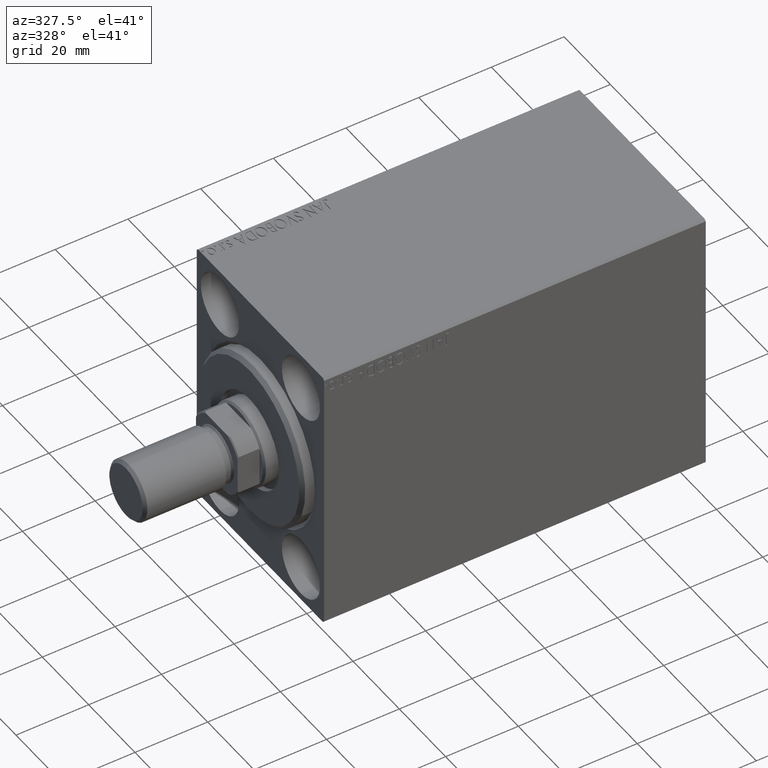
[diagram: clean part render]
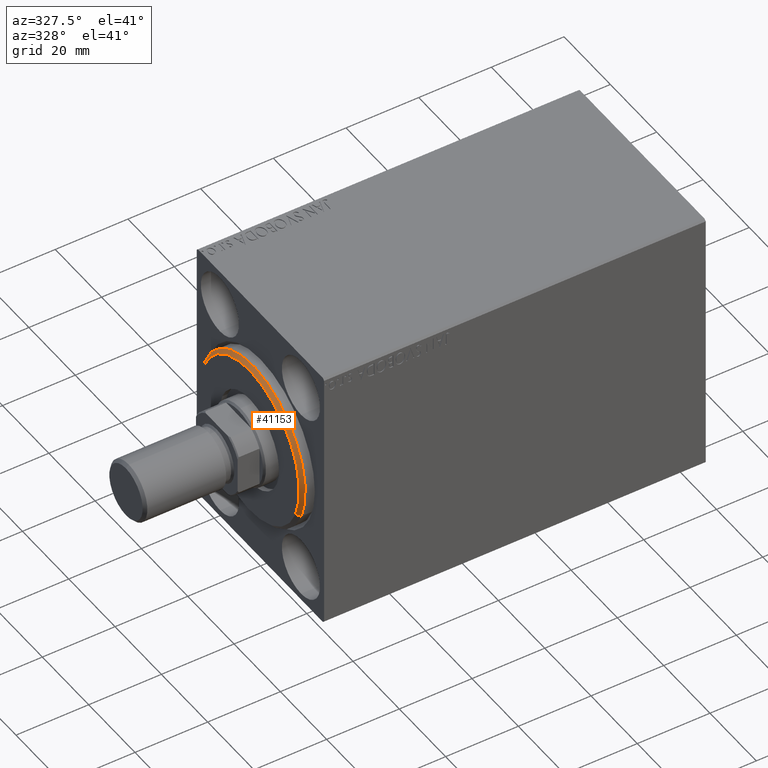
[diagram: same view with one face highlighted and labeled with its STEP entity id]
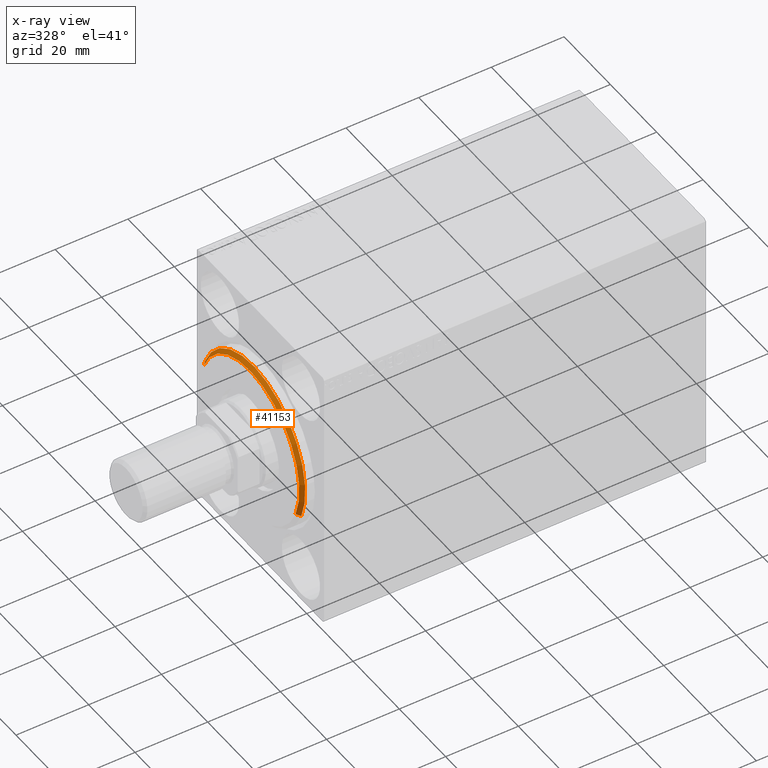
[diagram: x-ray of the same camera — body ghosted, the highlighted face saturated]
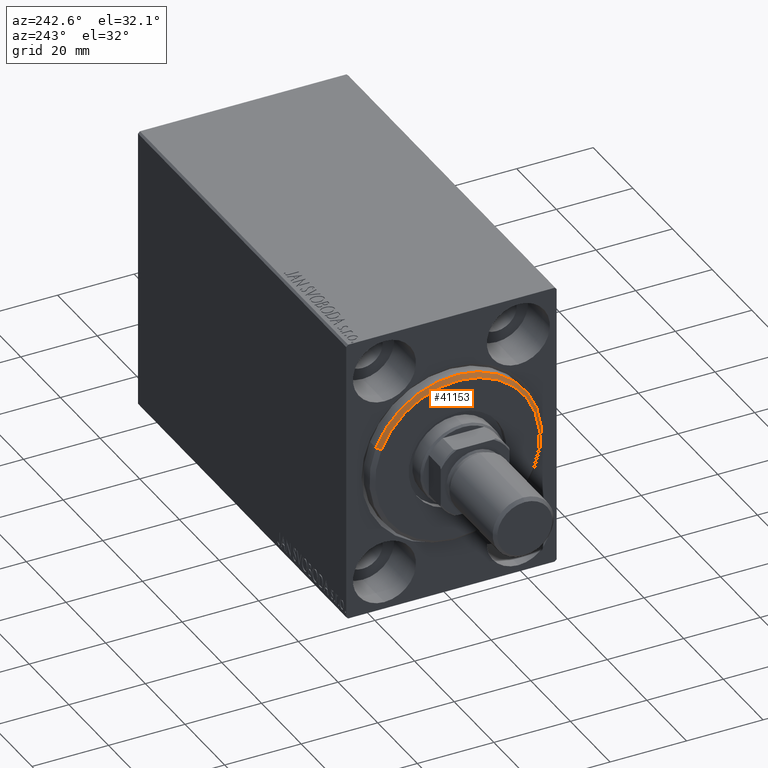
[diagram: same view with one face highlighted and labeled with its STEP entity id]
A machine part, auxiliary view. The second image highlights one B-rep face of the part: STEP entity #41153.
The next image is the same camera in x-ray: the body ghosted, the highlighted face saturated — about 0% of this face is hidden behind the body in this view.
A second angle (auxiliary view) of the same face is appended — the face is thin or edge-on in the first view.
In plain terms, the highlighted conical surface has half-angle 45 deg.
Its self-contained STEP definition (entity closure, byte-faithful):
#4809 = VECTOR ( 'NONE', #26186, 1000.000000000000000 ) ;
#6326 = DIRECTION ( 'NONE',  ( 1.000000000000000000, -0.000000000000000000, 0.000000000000000000 ) ) ;
#6547 = DIRECTION ( 'NONE',  ( 0.000000000000000000, 0.000000000000000000, 1.000000000000000000 ) ) ;
#8354 = DIRECTION ( 'NONE',  ( -0.7071067811865487940, 8.659560562354919300E-17, -0.7071067811865463515 ) ) ;
#8514 = CIRCLE ( 'NONE', #14283, 21.50000000000000355 ) ;
#9690 = DIRECTION ( 'NONE',  ( 0.000000000000000000, 0.000000000000000000, -1.000000000000000000 ) ) ;
#11770 = EDGE_CURVE ( 'NONE', #30543, #36107, #41754, .T. ) ;
#13742 = DIRECTION ( 'NONE',  ( -1.000000000000000000, 0.000000000000000000, 0.000000000000000000 ) ) ;
#14283 = AXIS2_PLACEMENT_3D ( 'NONE', #26320, #6326, #26096 ) ;
#15413 = ORIENTED_EDGE ( 'NONE', *, *, #40200, .F. ) ;
#16238 = DIRECTION ( 'NONE',  ( -1.000000000000000000, 0.000000000000000000, 0.000000000000000000 ) ) ;
#17303 = ORIENTED_EDGE ( 'NONE', *, *, #36462, .F. ) ;
#17531 = CARTESIAN_POINT ( 'NONE',  ( 3.000000000000000000, 2.694222958124177598E-15, -21.50000000000000355 ) ) ;
#19235 = VERTEX_POINT ( 'NONE', #17531 ) ;
#20972 = AXIS2_PLACEMENT_3D ( 'NONE', #26324, #13742, #9690 ) ;
#25428 = CARTESIAN_POINT ( 'NONE',  ( 3.000000000000000000, 2.632990618166810024E-15, -21.50000000000000355 ) ) ;
#26096 = DIRECTION ( 'NONE',  ( 0.000000000000000000, 0.000000000000000000, -1.000000000000000000 ) ) ;
#26186 = DIRECTION ( 'NONE',  ( -0.7071067811865487940, 0.000000000000000000, 0.7071067811865463515 ) ) ;
#26320 = CARTESIAN_POINT ( 'NONE',  ( 3.000000000000000000, 0.000000000000000000, 0.000000000000000000 ) ) ;
#26324 = CARTESIAN_POINT ( 'NONE',  ( 1.999999999999999112, 0.000000000000000000, 0.000000000000000000 ) ) ;
#26327 = FACE_OUTER_BOUND ( 'NONE', #40915, .T. ) ;
#27577 = CARTESIAN_POINT ( 'NONE',  ( 1.999999999999999112, 0.000000000000000000, 22.50000000000000355 ) ) ;
#27799 = VECTOR ( 'NONE', #8354, 1000.000000000000000 ) ;
#27925 = LINE ( 'NONE', #25428, #27799 ) ;
#28784 = CARTESIAN_POINT ( 'NONE',  ( 1.999999999999999112, 2.755455298081545172E-15, -22.50000000000000355 ) ) ;
#29056 = ORIENTED_EDGE ( 'NONE', *, *, #11770, .F. ) ;
#29336 = CARTESIAN_POINT ( 'NONE',  ( 3.000000000000000000, 0.000000000000000000, 21.50000000000000355 ) ) ;
#30543 = VERTEX_POINT ( 'NONE', #28784 ) ;
#30802 = CONICAL_SURFACE ( 'NONE', #41557, 21.50000000000000355, 0.7853981633974466137 ) ;
#35044 = ORIENTED_EDGE ( 'NONE', *, *, #35302, .T. ) ;
#35302 = EDGE_CURVE ( 'NONE', #42745, #36107, #39886, .T. ) ;
#36107 = VERTEX_POINT ( 'NONE', #27577 ) ;
#36462 = EDGE_CURVE ( 'NONE', #19235, #30543, #27925, .T. ) ;
#37318 = CARTESIAN_POINT ( 'NONE',  ( 3.000000000000000000, 0.000000000000000000, 0.000000000000000000 ) ) ;
#39886 = LINE ( 'NONE', #29336, #4809 ) ;
#40200 = EDGE_CURVE ( 'NONE', #42745, #19235, #8514, .T. ) ;
#40915 = EDGE_LOOP ( 'NONE', ( #17303, #15413, #35044, #29056 ) ) ;
#41153 = ADVANCED_FACE ( 'NONE', ( #26327 ), #30802, .T. ) ;
#41557 = AXIS2_PLACEMENT_3D ( 'NONE', #37318, #16238, #6547 ) ;
#41754 = CIRCLE ( 'NONE', #20972, 22.50000000000000355 ) ;
#42745 = VERTEX_POINT ( 'NONE', #44251 ) ;
#44251 = CARTESIAN_POINT ( 'NONE',  ( 3.000000000000000000, 0.000000000000000000, 21.50000000000000355 ) ) ;